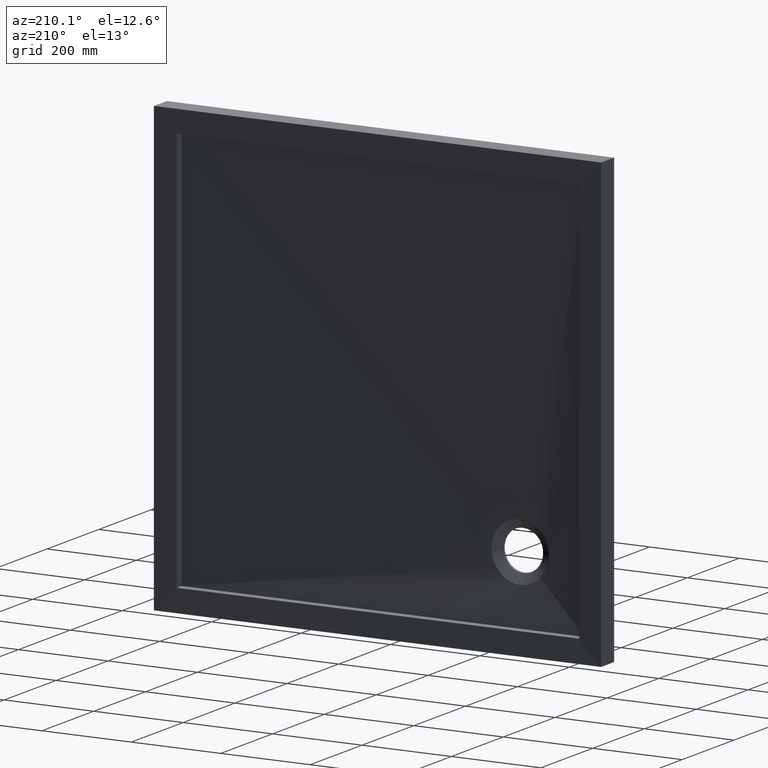
[diagram: clean part render]
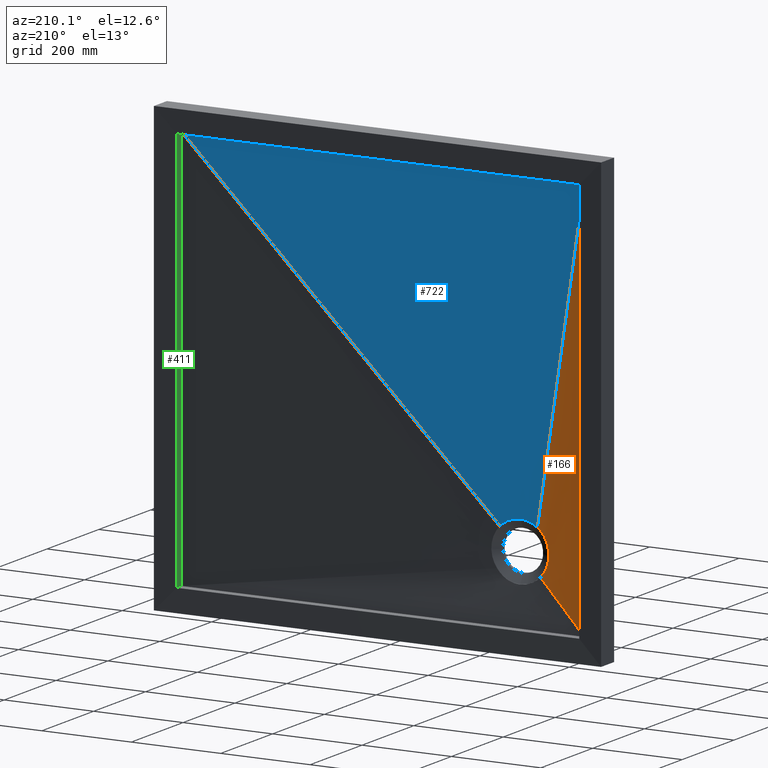
[diagram: same view with three faces highlighted in distinct colors, each labeled with its STEP entity id]
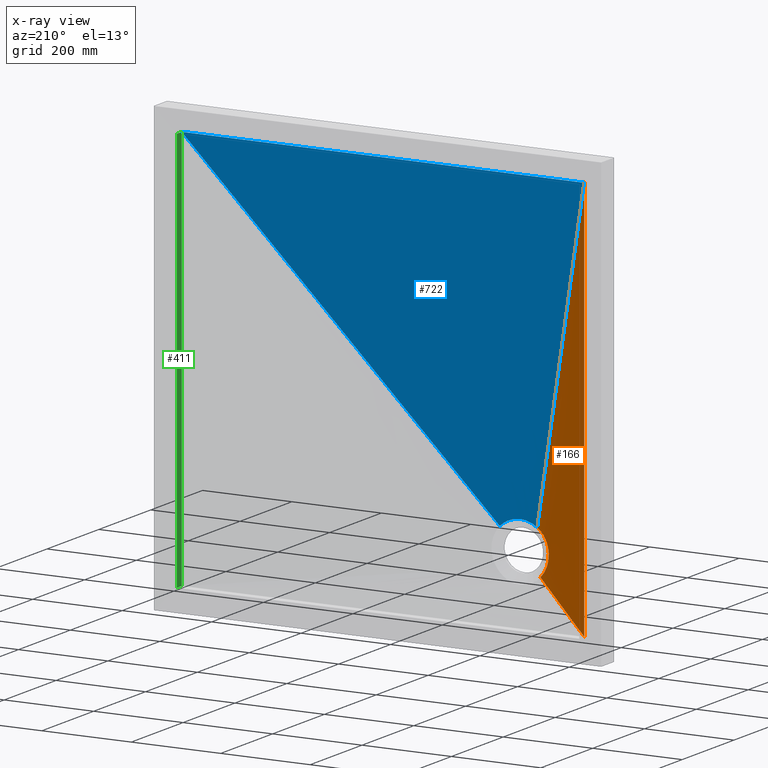
[diagram: x-ray of the same camera — body ghosted, the three highlighted faces saturated]
A machine part, auxiliary view with three faces highlighted in distinct colors.
The next image is the same camera in x-ray (body ghosted, the three faces saturated) — at least one of them is partly hidden behind the body in this view.
Their STEP definitions:

[orange] entity #166 — the highlighted face is a freeform B-spline surface patch.
#7 = FACE_OUTER_BOUND ( 'NONE', #944, .T. ) ;
#14 = CARTESIAN_POINT ( 'NONE',  ( -352.8551684008061800, 17.54700538379253100, -262.1670623223303700 ) ) ;
#31 = CARTESIAN_POINT ( 'NONE',  ( -450.0000000000000000, 29.00000000000000000, 450.0000000000000000 ) ) ;
#35 = CARTESIAN_POINT ( 'NONE',  ( -450.0000000000000000, 28.99999999999991500, 450.0000000000000000 ) ) ;
#38 = CARTESIAN_POINT ( 'NONE',  ( -364.2921233611156100, 18.82198326858354100, -290.2444114671553700 ) ) ;
#47 = CARTESIAN_POINT ( 'NONE',  ( -343.8418529201518900, 16.99999999999999600, -326.2526570011329500 ) ) ;
#51 = CARTESIAN_POINT ( 'NONE',  ( -338.5603925686426700, 17.26308587154314400, -248.2853138542000100 ) ) ;
#53 = CARTESIAN_POINT ( 'NONE',  ( -351.8251664246633400, 17.50373518111064900, -260.8568435387116400 ) ) ;
#56 = CARTESIAN_POINT ( 'NONE',  ( -348.1457094635766800, 17.00000000000000400, -317.1577413017159900 ) ) ;
#67 = CARTESIAN_POINT ( 'NONE',  ( -450.0000000000000600, 29.00000000000000400, -262.5000000000001700 ) ) ;
#69 = CARTESIAN_POINT ( 'NONE',  ( -354.3467400041220100, 18.51606842640906700, -335.7070884190870900 ) ) ;
#79 = EDGE_CURVE ( 'NONE', #208, #435, #504, .T. ) ;
#94 = CARTESIAN_POINT ( 'NONE',  ( -361.5845110594728500, 18.31609670325806500, -279.1194683879301100 ) ) ;
#101 = CARTESIAN_POINT ( 'NONE',  ( -348.6703369655473400, 18.17281108729402900, -343.2535445887040200 ) ) ;
#102 = CARTESIAN_POINT ( 'NONE',  ( -393.0312229202571100, 23.00000000000000000, -393.0312229202569900 ) ) ;
#112 = B_SPLINE_CURVE_WITH_KNOTS ( 'NONE', 3,
 ( #186, #53, #938, #713, #727, #649, #679, #51 ),
 .UNSPECIFIED., .F., .F.,
 ( 4, 2, 2, 4 ),
 ( 0.0000000000000000000, 0.004993680485599009300, 0.009987360971198018500, 0.01997472194239603700 ),
 .UNSPECIFIED. ) ;
#117 = CARTESIAN_POINT ( 'NONE',  ( -364.9013166892488600, 18.98730738815679700, -295.9415274406735500 ) ) ;
#120 = VERTEX_POINT ( 'NONE', #740 ) ;
#126 = CARTESIAN_POINT ( 'NONE',  ( -363.2990674265385600, 19.09109580896117800, -314.8928397711155200 ) ) ;
#139 = ORIENTED_EDGE ( 'NONE', *, *, #728, .F. ) ;
#151 = VERTEX_POINT ( 'NONE', #502 ) ;
#152 = CARTESIAN_POINT ( 'NONE',  ( -360.5555862890719800, 18.92876172514269200, -323.9297737032595700 ) ) ;
#155 = CARTESIAN_POINT ( 'NONE',  ( -336.0624458405141000, 17.00000000000000000, -263.9375541594859000 ) ) ;
#166 = ADVANCED_FACE ( 'NONE', ( #7 ), #324, .F. ) ;
#176 = CARTESIAN_POINT ( 'NONE',  ( -450.0000000000000000, 28.99999999999991500, 450.0000000000000000 ) ) ;
#178 = CARTESIAN_POINT ( 'NONE',  ( -345.4639620923478600, 17.00000000000000700, -276.6456518568106200 ) ) ;
#184 = CARTESIAN_POINT ( 'NONE',  ( -358.5415815889070900, 18.79393348236906300, -328.2629889402772400 ) ) ;
#186 = CARTESIAN_POINT ( 'NONE',  ( -352.8551684008061800, 17.54700538379253100, -262.1670623223303700 ) ) ;
#205 = B_SPLINE_CURVE_WITH_KNOTS ( 'NONE', 3,
 ( #176, #254, #275, #824 ),
 .UNSPECIFIED., .F., .F.,
 ( 4, 4 ),
 ( 0.0000000000000000000, 1.000000000000000000 ),
 .UNSPECIFIED. ) ;
#208 = VERTEX_POINT ( 'NONE', #958 ) ;
#221 = CARTESIAN_POINT ( 'NONE',  ( -353.9702514442683400, 17.59203971971301400, -263.7249086240165100 ) ) ;
#224 = LINE ( 'NONE', #656, #436 ) ;
#230 = CARTESIAN_POINT ( 'NONE',  ( -450.0000000000001100, 29.00000000000000400, -412.5000000000001100 ) ) ;
#247 = CARTESIAN_POINT ( 'NONE',  ( -360.2520787217121100, 18.12160243016774100, -275.5391003323758200 ) ) ;
#253 = CARTESIAN_POINT ( 'NONE',  ( -348.1457094635766800, 17.00000000000000700, -282.8422586982841300 ) ) ;
#254 = CARTESIAN_POINT ( 'NONE',  ( -450.0000000000000600, 28.99999999999947100, 150.0000000000000300 ) ) ;
#271 = ORIENTED_EDGE ( 'NONE', *, *, #663, .T. ) ;
#274 = CARTESIAN_POINT ( 'NONE',  ( -351.0000000000002800, 17.00000000000000000, -296.4791847198286500 ) ) ;
#275 = CARTESIAN_POINT ( 'NONE',  ( -450.0000000000000600, 28.99999999999947100, -150.0000000000000300 ) ) ;
#278 = DIRECTION ( 'NONE',  ( -0.7051540081587475100, 0.07426741920456142500, -0.7051540081587475100 ) ) ;
#286 = CARTESIAN_POINT ( 'NONE',  ( -355.3618584675568300, 18.58212411533954600, -334.1124750363029500 ) ) ;
#318 = CARTESIAN_POINT ( 'NONE',  ( -364.5507734855690400, 18.88424425501423100, -292.1355388024512100 ) ) ;
#324 = B_SPLINE_SURFACE_WITH_KNOTS ( 'NONE', 3, 1, ( 
 ( #31, #155 ),
 ( #877, #800 ),
 ( #756, #363 ),
 ( #697, #814 ),
 ( #910, #178 ),
 ( #443, #253 ),
 ( #420, #470 ),
 ( #790, #614 ),
 ( #406, #274 ),
 ( #810, #977 ),
 ( #737, #767 ),
 ( #964, #582 ),
 ( #380, #56 ),
 ( #67, #773 ),
 ( #925, #47 ),
 ( #786, #346 ),
 ( #230, #785 ),
 ( #359, #495 ) ),
 .UNSPECIFIED., .F., .F., .F.,
 ( 4, 2, 2, 2, 2, 2, 2, 2, 4 ),
 ( 2, 2 ),
 ( 0.0000000000000000000, 0.1250000000000000000, 0.2500000000000000000, 0.3750000000000000000, 0.5000000000000000000, 0.6250000000000000000, 0.7500000000000000000, 0.8750000000000000000, 1.000000000000000000 ),
 ( 0.0000000000000000000, 1.000000000000000000 ),
 .UNSPECIFIED. ) ;
#334 = EDGE_CURVE ( 'NONE', #556, #151, #205, .T. ) ;
#346 = CARTESIAN_POINT ( 'NONE',  ( -340.2030057114421900, 16.99999999999999600, -331.5440707401105600 ) ) ;
#359 = CARTESIAN_POINT ( 'NONE',  ( -450.0000000000001100, 29.00000000000000000, -450.0000000000000000 ) ) ;
#363 = CARTESIAN_POINT ( 'NONE',  ( -340.2030057114422400, 17.00000000000000400, -268.4559292598892700 ) ) ;
#364 = CARTESIAN_POINT ( 'NONE',  ( -363.7059645829671100, 19.10922747646185400, -313.0445142335825000 ) ) ;
#377 = LINE ( 'NONE', #102, #963 ) ;
#380 = CARTESIAN_POINT ( 'NONE',  ( -450.0000000000001100, 29.00000000000000400, -187.5000000000001700 ) ) ;
#406 = CARTESIAN_POINT ( 'NONE',  ( -450.0000000000000600, 29.00000000000000400, 37.49999999999979400 ) ) ;
#414 = CARTESIAN_POINT ( 'NONE',  ( -362.1703942737784100, 18.41335873184959100, -280.9347016672782000 ) ) ;
#420 = CARTESIAN_POINT ( 'NONE',  ( -450.0000000000000600, 29.00000000000000400, 149.9999999999998300 ) ) ;
#431 = CARTESIAN_POINT ( 'NONE',  ( -357.2395091292833100, 18.70663715667435100, -330.8147208340935200 ) ) ;
#435 = VERTEX_POINT ( 'NONE', #14 ) ;
#436 = VECTOR ( 'NONE', #967, 999.9999999999998900 ) ;
#443 = CARTESIAN_POINT ( 'NONE',  ( -450.0000000000000600, 29.00000000000000400, 187.4999999999998300 ) ) ;
#460 = ORIENTED_EDGE ( 'NONE', *, *, #79, .F. ) ;
#463 = CARTESIAN_POINT ( 'NONE',  ( -345.9619407771256200, 18.04262321686363900, -345.9619407771255100 ) ) ;
#470 = CARTESIAN_POINT ( 'NONE',  ( -349.2040332106620300, 17.00000000000000000, -286.1400715441737400 ) ) ;
#479 = CARTESIAN_POINT ( 'NONE',  ( -364.5843865273288300, 19.12528167321582400, -307.4006626994245700 ) ) ;
#484 = CARTESIAN_POINT ( 'NONE',  ( -361.8414236869116400, 19.01285610084535100, -320.3694077097542800 ) ) ;
#492 = CARTESIAN_POINT ( 'NONE',  ( -364.6866029590012800, 19.12285866245416700, -306.4465555110787100 ) ) ;
#495 = CARTESIAN_POINT ( 'NONE',  ( -336.0624458405141000, 17.00000000000000000, -336.0624458405139900 ) ) ;
#502 = CARTESIAN_POINT ( 'NONE',  ( -450.0000000000001100, 29.00000000000000000, -450.0000000000000000 ) ) ;
#504 = B_SPLINE_CURVE_WITH_KNOTS ( 'NONE', 3,
 ( #463, #101, #904, #69, #286, #610, #431, #537, #184, #152, #484, #126, #364, #890, #929, #479, #492, #948, #726, #796, #117, #318, #38, #555, #985, #414, #94, #247, #819, #712, #749, #900, #221, #804 ),
 .UNSPECIFIED., .F., .F.,
 ( 4, 2, 2, 2, 2, 2, 2, 2, 2, 2, 2, 2, 2, 2, 2, 2, 4 ),
 ( 0.0000000000000000000, 0.01133462450282639000, 0.01700193675423947200, 0.01983559287994600800, 0.02266924900565254700, 0.03400387350847899200, 0.03967118575989226500, 0.04250484188559892200, 0.04533849801130557900, 0.05100581026271906000, 0.05667312251413253500, 0.06234043476554601600, 0.06800774701695948300, 0.07367505926837296400, 0.07934237151978643100, 0.08500968377119991200, 0.09067699602261339300 ),
 .UNSPECIFIED. ) ;
#537 = CARTESIAN_POINT ( 'NONE',  ( -358.1183958962571400, 18.76550048180119000, -329.1231949464739200 ) ) ;
#555 = CARTESIAN_POINT ( 'NONE',  ( -363.6083004728861300, 18.67681216011788000, -286.4858316995046200 ) ) ;
#556 = VERTEX_POINT ( 'NONE', #35 ) ;
#582 = CARTESIAN_POINT ( 'NONE',  ( -349.2040332106619200, 17.00000000000000400, -313.8599284558259200 ) ) ;
#610 = CARTESIAN_POINT ( 'NONE',  ( -356.7828282375139100, 18.67614018704998100, -331.6482147817226900 ) ) ;
#614 = CARTESIAN_POINT ( 'NONE',  ( -350.6316215631954400, 17.00000000000000400, -292.9591620613796300 ) ) ;
#649 = CARTESIAN_POINT ( 'NONE',  ( -343.8085154320919500, 17.31847910624139100, -252.4015163884752400 ) ) ;
#656 = CARTESIAN_POINT ( 'NONE',  ( -393.0312229202570500, 23.00000000000000000, 93.03122292025706500 ) ) ;
#663 = EDGE_CURVE ( 'NONE', #208, #151, #377, .T. ) ;
#679 = CARTESIAN_POINT ( 'NONE',  ( -341.2593816668664300, 17.28793742901142100, -250.2440877312139900 ) ) ;
#690 = ORIENTED_EDGE ( 'NONE', *, *, #334, .F. ) ;
#696 = EDGE_CURVE ( 'NONE', #556, #120, #224, .T. ) ;
#697 = CARTESIAN_POINT ( 'NONE',  ( -450.0000000000000600, 29.00000000000000000, 299.9999999999998300 ) ) ;
#712 = CARTESIAN_POINT ( 'NONE',  ( -357.8597999098281500, 17.85183297521119900, -270.3199830047479400 ) ) ;
#713 = CARTESIAN_POINT ( 'NONE',  ( -348.5391564187669400, 17.40853637329797700, -257.0978259820711300 ) ) ;
#726 = CARTESIAN_POINT ( 'NONE',  ( -365.0063781713903900, 19.08850047980048400, -301.6794621602513800 ) ) ;
#727 = CARTESIAN_POINT ( 'NONE',  ( -347.3871845973854400, 17.38355639157465800, -255.8920982370656000 ) ) ;
#728 = EDGE_CURVE ( 'NONE', #435, #120, #112, .T. ) ;
#735 = ORIENTED_EDGE ( 'NONE', *, *, #696, .T. ) ;
#737 = CARTESIAN_POINT ( 'NONE',  ( -450.0000000000000600, 29.00000000000000400, -75.00000000000019900 ) ) ;
#740 = CARTESIAN_POINT ( 'NONE',  ( -338.5603925686426700, 17.26308587154314400, -248.2853138542000100 ) ) ;
#749 = CARTESIAN_POINT ( 'NONE',  ( -356.9604289158505100, 17.77515069837810600, -268.6284370782415700 ) ) ;
#756 = CARTESIAN_POINT ( 'NONE',  ( -450.0000000000000600, 29.00000000000000000, 374.9999999999998900 ) ) ;
#767 = CARTESIAN_POINT ( 'NONE',  ( -350.6316215631954900, 17.00000000000000000, -307.0408379386201400 ) ) ;
#773 = CARTESIAN_POINT ( 'NONE',  ( -345.4639620923478000, 17.00000000000000400, -323.3543481431895000 ) ) ;
#785 = CARTESIAN_POINT ( 'NONE',  ( -338.1874458405141000, 17.00000000000000400, -333.9374458405139900 ) ) ;
#786 = CARTESIAN_POINT ( 'NONE',  ( -450.0000000000001100, 29.00000000000000400, -375.0000000000001100 ) ) ;
#790 = CARTESIAN_POINT ( 'NONE',  ( -450.0000000000000600, 29.00000000000000400, 74.99999999999980100 ) ) ;
#796 = CARTESIAN_POINT ( 'NONE',  ( -364.9928011026598300, 19.02815523540662900, -297.8585983703063700 ) ) ;
#800 = CARTESIAN_POINT ( 'NONE',  ( -338.1874458405141600, 17.00000000000000000, -266.0625541594859000 ) ) ;
#804 = CARTESIAN_POINT ( 'NONE',  ( -352.8551684008061800, 17.54700538379253100, -262.1670623223303700 ) ) ;
#810 = CARTESIAN_POINT ( 'NONE',  ( -450.0000000000000600, 29.00000000000000400, -37.50000000000021300 ) ) ;
#814 = CARTESIAN_POINT ( 'NONE',  ( -343.8418529201518900, 16.99999999999999300, -273.7473429988668800 ) ) ;
#819 = CARTESIAN_POINT ( 'NONE',  ( -359.5052134994810400, 18.02503626519804000, -273.7742603378859500 ) ) ;
#824 = CARTESIAN_POINT ( 'NONE',  ( -450.0000000000001100, 29.00000000000000000, -450.0000000000000000 ) ) ;
#877 = CARTESIAN_POINT ( 'NONE',  ( -450.0000000000000600, 29.00000000000000000, 412.5000000000000000 ) ) ;
#890 = CARTESIAN_POINT ( 'NONE',  ( -364.1958076854799100, 19.12299368659877900, -310.2372161434631200 ) ) ;
#900 = CARTESIAN_POINT ( 'NONE',  ( -355.0152291498682200, 17.64541825568552700, -265.3302728014913900 ) ) ;
#904 = CARTESIAN_POINT ( 'NONE',  ( -351.1005741778367900, 18.31353808573291500, -340.3483403434632900 ) ) ;
#910 = CARTESIAN_POINT ( 'NONE',  ( -450.0000000000001100, 29.00000000000000400, 262.4999999999998300 ) ) ;
#925 = CARTESIAN_POINT ( 'NONE',  ( -450.0000000000000600, 29.00000000000000400, -300.0000000000001700 ) ) ;
#929 = CARTESIAN_POINT ( 'NONE',  ( -364.3389762461997600, 19.12534245992991800, -309.2956402196406900 ) ) ;
#938 = CARTESIAN_POINT ( 'NONE',  ( -350.7574903437760000, 17.46860849645792500, -259.5795773333211400 ) ) ;
#944 = EDGE_LOOP ( 'NONE', ( #460, #271, #690, #735, #139 ) ) ;
#948 = CARTESIAN_POINT ( 'NONE',  ( -364.9290956595341400, 19.10816612324314400, -303.5876535739411100 ) ) ;
#958 = CARTESIAN_POINT ( 'NONE',  ( -345.9619407771256200, 18.04262321686363900, -345.9619407771255100 ) ) ;
#963 = VECTOR ( 'NONE', #278, 1000.000000000000000 ) ;
#964 = CARTESIAN_POINT ( 'NONE',  ( -450.0000000000000600, 29.00000000000000400, -150.0000000000002000 ) ) ;
#967 = DIRECTION ( 'NONE',  ( 0.1575743643600920600, -0.01659586592208480600, -0.9873676604643324400 ) ) ;
#977 = CARTESIAN_POINT ( 'NONE',  ( -351.0000000000002300, 17.00000000000000400, -303.5208152801713500 ) ) ;
#985 = CARTESIAN_POINT ( 'NONE',  ( -363.1820438321539700, 18.59357988212811500, -284.6158243033780200 ) ) ;

[blue] entity #722 — the highlighted face is a freeform B-spline surface patch.
#8 = CARTESIAN_POINT ( 'NONE',  ( -266.0625541594860100, 17.00000000000000400, -261.8125541594859600 ) ) ;
#28 = CARTESIAN_POINT ( 'NONE',  ( -149.9999999999999700, 28.99999999999991500, 450.0000000000000600 ) ) ;
#35 = CARTESIAN_POINT ( 'NONE',  ( -450.0000000000000000, 28.99999999999991500, 450.0000000000000000 ) ) ;
#43 = CARTESIAN_POINT ( 'NONE',  ( -256.0309972352126200, 17.16113947937070300, -253.0274943978451700 ) ) ;
#46 = CARTESIAN_POINT ( 'NONE',  ( -311.9648611113410700, 17.25086131009051000, -236.6094369888709500 ) ) ;
#50 = CARTESIAN_POINT ( 'NONE',  ( -283.3549694857541100, 17.20867441312686500, -237.7381808175571200 ) ) ;
#55 = CARTESIAN_POINT ( 'NONE',  ( -279.3351583616008600, 17.20187163617892900, -238.9940211910031300 ) ) ;
#80 = CARTESIAN_POINT ( 'NONE',  ( -263.9375541594860100, 17.00000000000000000, -263.9375541594859000 ) ) ;
#85 = B_SPLINE_CURVE_WITH_KNOTS ( 'NONE', 3,
 ( #493, #986, #28, #154 ),
 .UNSPECIFIED., .F., .F.,
 ( 4, 4 ),
 ( 0.0000000000000000000, 1.000000000000000000 ),
 .UNSPECIFIED. ) ;
#86 = CARTESIAN_POINT ( 'NONE',  ( 450.0000000000000000, 29.00000000000000000, 450.0000000000001100 ) ) ;
#95 = CARTESIAN_POINT ( 'NONE',  ( -291.5689109689746500, 17.22219290705118100, -236.0818602959699300 ) ) ;
#96 = EDGE_CURVE ( 'NONE', #978, #911, #842, .T. ) ;
#97 = ORIENTED_EDGE ( 'NONE', *, *, #807, .F. ) ;
#114 = CARTESIAN_POINT ( 'NONE',  ( -286.1400715441738500, 17.00000000000000000, -250.7959667893379100 ) ) ;
#116 = CARTESIAN_POINT ( 'NONE',  ( -319.4930070071359300, 17.25823552145292400, -238.5101334715407400 ) ) ;
#120 = VERTEX_POINT ( 'NONE', #740 ) ;
#124 = CARTESIAN_POINT ( 'NONE',  ( -338.5603925686426700, 17.26308587154314400, -248.2853138542000100 ) ) ;
#131 = B_SPLINE_CURVE_WITH_KNOTS ( 'NONE', 3,
 ( #670, #837, #774, #193, #858, #95, #738, #664, #50, #650, #55, #621, #539, #917, #850, #927, #947, #677, #258, #43, #884, #826 ),
 .UNSPECIFIED., .F., .F.,
 ( 4, 2, 2, 2, 2, 2, 2, 2, 2, 2, 4 ),
 ( 0.04113995195753773100, 0.04428207836203593200, 0.04742420476653412500, 0.05370845757553051300, 0.05999271038452690100, 0.06313483678902501200, 0.06627696319352313600, 0.07884546881151535700, 0.08512972162051150900, 0.08827184802500952200, 0.09141397442950752200 ),
 .UNSPECIFIED. ) ;
#154 = CARTESIAN_POINT ( 'NONE',  ( -450.0000000000000000, 28.99999999999991500, 450.0000000000000000 ) ) ;
#172 = CARTESIAN_POINT ( 'NONE',  ( -273.7473429988670500, 16.99999999999999600, -256.1581470798480500 ) ) ;
#175 = ORIENTED_EDGE ( 'NONE', *, *, #696, .F. ) ;
#179 = CARTESIAN_POINT ( 'NONE',  ( 74.99999999999951700, 29.00000000000000400, 450.0000000000000600 ) ) ;
#187 = VERTEX_POINT ( 'NONE', #508 ) ;
#193 = CARTESIAN_POINT ( 'NONE',  ( -295.7631510587033900, 17.22875659576783000, -235.6819173638753300 ) ) ;
#202 = CARTESIAN_POINT ( 'NONE',  ( -326.2526570011330000, 17.00000000000000000, -256.1581470798482200 ) ) ;
#206 = CARTESIAN_POINT ( 'NONE',  ( -323.3543481431895500, 17.00000000000000000, -254.5360379076521200 ) ) ;
#224 = LINE ( 'NONE', #656, #436 ) ;
#229 = CARTESIAN_POINT ( 'NONE',  ( -323.6104398865866200, 17.26147282362796900, -239.8706885921183100 ) ) ;
#237 = CARTESIAN_POINT ( 'NONE',  ( -307.0408379386203700, 17.00000000000000000, -249.3683784368045300 ) ) ;
#252 = CARTESIAN_POINT ( 'NONE',  ( 412.4999999999999400, 29.00000000000000000, 450.0000000000000600 ) ) ;
#255 = ORIENTED_EDGE ( 'NONE', *, *, #96, .T. ) ;
#258 = CARTESIAN_POINT ( 'NONE',  ( -257.6014667205688500, 17.16395936039909000, -251.5987365790470800 ) ) ;
#265 = CARTESIAN_POINT ( 'NONE',  ( -313.8599284558261500, 16.99999999999999600, -250.7959667893378500 ) ) ;
#280 = CARTESIAN_POINT ( 'NONE',  ( 149.9999999999995200, 29.00000000000000400, 450.0000000000000600 ) ) ;
#288 = CARTESIAN_POINT ( 'NONE',  ( -313.6489098088280800, 17.25272281939707100, -236.9470523910921100 ) ) ;
#309 = CARTESIAN_POINT ( 'NONE',  ( -317.1577413017159300, 17.00000000000000000, -251.8542905364232100 ) ) ;
#340 = CARTESIAN_POINT ( 'NONE',  ( -300.0000000000000600, 17.23511975935370800, -235.5402017476782000 ) ) ;
#401 = CARTESIAN_POINT ( 'NONE',  ( -187.5000000000001700, 28.99999999999999600, 450.0000000000000000 ) ) ;
#402 = B_SPLINE_CURVE_WITH_KNOTS ( 'NONE', 3,
 ( #124, #760, #434, #789, #229, #116, #494, #485, #926, #288, #46, #742, #512, #340 ),
 .UNSPECIFIED., .F., .F.,
 ( 4, 2, 2, 2, 2, 2, 4 ),
 ( 0.0000000000000000000, 0.01028498798938443400, 0.02056997597876886900, 0.02314122297611498300, 0.02571246997346109500, 0.03085496396815331000, 0.04113995195753773100 ),
 .UNSPECIFIED. ) ;
#433 = VECTOR ( 'NONE', #667, 1000.000000000000000 ) ;
#434 = CARTESIAN_POINT ( 'NONE',  ( -332.8572535547197600, 17.26459800906154000, -244.3780121179430000 ) ) ;
#436 = VECTOR ( 'NONE', #967, 999.9999999999998900 ) ;
#439 = EDGE_CURVE ( 'NONE', #187, #911, #131, .T. ) ;
#452 = CARTESIAN_POINT ( 'NONE',  ( -296.4791847198287100, 17.00000000000000000, -248.9999999999998000 ) ) ;
#472 = CARTESIAN_POINT ( 'NONE',  ( 450.0000000000002300, 29.00000000000000000, 450.0000000000001100 ) ) ;
#476 = FACE_OUTER_BOUND ( 'NONE', #743, .T. ) ;
#485 = CARTESIAN_POINT ( 'NONE',  ( -316.9958233185626600, 17.25603542168802200, -237.7775833483804000 ) ) ;
#493 = CARTESIAN_POINT ( 'NONE',  ( 450.0000000000002300, 29.00000000000000000, 450.0000000000001100 ) ) ;
#494 = CARTESIAN_POINT ( 'NONE',  ( -318.6609623412248900, 17.25753170825674200, -238.2538265397795100 ) ) ;
#508 = CARTESIAN_POINT ( 'NONE',  ( -300.0000000000000600, 17.23511975935370800, -235.5402017476782000 ) ) ;
#512 = CARTESIAN_POINT ( 'NONE',  ( -303.4613990964522800, 17.24017999476849300, -235.5314371628416800 ) ) ;
#530 = CARTESIAN_POINT ( 'NONE',  ( -150.0000000000002000, 28.99999999999999600, 450.0000000000000600 ) ) ;
#534 = CARTESIAN_POINT ( 'NONE',  ( 93.03122292025712200, 23.00000000000000000, 93.03122292025712200 ) ) ;
#539 = CARTESIAN_POINT ( 'NONE',  ( -276.3511707272214700, 17.19676822404616700, -240.0970892184795400 ) ) ;
#545 = CARTESIAN_POINT ( 'NONE',  ( -254.5140105692795800, 17.15839273676478200, -254.5140105692794600 ) ) ;
#556 = VERTEX_POINT ( 'NONE', #35 ) ;
#557 = CARTESIAN_POINT ( 'NONE',  ( -37.50000000000034800, 29.00000000000000400, 450.0000000000000600 ) ) ;
#562 = CARTESIAN_POINT ( 'NONE',  ( -412.5000000000000600, 28.99999999999999600, 449.9999999999999400 ) ) ;
#593 = CARTESIAN_POINT ( 'NONE',  ( -333.9374458405141600, 17.00000000000000000, -261.8125541594860100 ) ) ;
#594 = CARTESIAN_POINT ( 'NONE',  ( -336.0624458405141000, 17.00000000000000000, -263.9375541594859000 ) ) ;
#621 = CARTESIAN_POINT ( 'NONE',  ( -277.3435255802096400, 17.19847142159727200, -239.7116034519668800 ) ) ;
#623 = CARTESIAN_POINT ( 'NONE',  ( -262.5000000000001700, 28.99999999999999600, 449.9999999999999400 ) ) ;
#650 = CARTESIAN_POINT ( 'NONE',  ( -280.3362354380332100, 17.20357180404728600, -238.6610435348146100 ) ) ;
#656 = CARTESIAN_POINT ( 'NONE',  ( -393.0312229202570500, 23.00000000000000000, 93.03122292025706500 ) ) ;
#664 = CARTESIAN_POINT ( 'NONE',  ( -285.3880889855440200, 17.21209000652072900, -237.2241683990566800 ) ) ;
#667 = DIRECTION ( 'NONE',  ( -0.7070568443483394900, -0.01188434770344730400, -0.7070568443483392600 ) ) ;
#670 = CARTESIAN_POINT ( 'NONE',  ( -300.0000000000000600, 17.23511975935370800, -235.5402017476782000 ) ) ;
#677 = CARTESIAN_POINT ( 'NONE',  ( -258.4059502331037900, 17.16539603516305600, -250.9024589136337800 ) ) ;
#678 = CARTESIAN_POINT ( 'NONE',  ( 374.9999999999998300, 29.00000000000000000, 450.0000000000000600 ) ) ;
#687 = CARTESIAN_POINT ( 'NONE',  ( -375.0000000000001100, 28.99999999999999600, 449.9999999999999400 ) ) ;
#696 = EDGE_CURVE ( 'NONE', #556, #120, #224, .T. ) ;
#722 = ADVANCED_FACE ( 'NONE', ( #476 ), #924, .F. ) ;
#723 = EDGE_CURVE ( 'NONE', #978, #556, #85, .T. ) ;
#736 = CARTESIAN_POINT ( 'NONE',  ( -75.00000000000025600, 29.00000000000000000, 450.0000000000000600 ) ) ;
#738 = CARTESIAN_POINT ( 'NONE',  ( -289.4950590420382400, 17.21885150639338500, -236.3960047945335200 ) ) ;
#740 = CARTESIAN_POINT ( 'NONE',  ( -338.5603925686426700, 17.26308587154314400, -248.2853138542000100 ) ) ;
#742 = CARTESIAN_POINT ( 'NONE',  ( -306.8849117032773400, 17.24480367108943900, -235.8004177364212200 ) ) ;
#743 = EDGE_LOOP ( 'NONE', ( #97, #175, #957, #255, #909 ) ) ;
#760 = CARTESIAN_POINT ( 'NONE',  ( -335.7737197350496100, 17.26434937202085300, -246.2047371495568500 ) ) ;
#762 = CARTESIAN_POINT ( 'NONE',  ( -450.0000000000000000, 29.00000000000000000, 450.0000000000000000 ) ) ;
#774 = CARTESIAN_POINT ( 'NONE',  ( -297.8785937166142600, 17.23198131659841400, -235.5718520258692800 ) ) ;
#789 = CARTESIAN_POINT ( 'NONE',  ( -326.7756130207695300, 17.26315089076872100, -241.2109890361850800 ) ) ;
#807 = EDGE_CURVE ( 'NONE', #120, #187, #402, .T. ) ;
#820 = CARTESIAN_POINT ( 'NONE',  ( -303.5208152801713500, 16.99999999999999600, -248.9999999999997400 ) ) ;
#823 = CARTESIAN_POINT ( 'NONE',  ( 299.9999999999997200, 29.00000000000000400, 450.0000000000000600 ) ) ;
#825 = CARTESIAN_POINT ( 'NONE',  ( -331.5440707401106700, 16.99999999999999600, -259.7969942885577000 ) ) ;
#826 = CARTESIAN_POINT ( 'NONE',  ( -254.5140105692795800, 17.15839273676478200, -254.5140105692794600 ) ) ;
#828 = CARTESIAN_POINT ( 'NONE',  ( -282.8422586982842400, 17.00000000000000700, -251.8542905364233800 ) ) ;
#837 = CARTESIAN_POINT ( 'NONE',  ( -298.9425215169239900, 17.23357382664810800, -235.5428793816695600 ) ) ;
#842 = LINE ( 'NONE', #534, #433 ) ;
#848 = CARTESIAN_POINT ( 'NONE',  ( -300.0000000000001700, 28.99999999999999600, 449.9999999999999400 ) ) ;
#850 = CARTESIAN_POINT ( 'NONE',  ( -267.7759704175886100, 17.18192934940879000, -244.1214791939737000 ) ) ;
#858 = CARTESIAN_POINT ( 'NONE',  ( -294.7107075512296900, 17.22712379247843700, -235.7628474257595900 ) ) ;
#880 = CARTESIAN_POINT ( 'NONE',  ( -268.4559292598894400, 17.00000000000000000, -259.7969942885577000 ) ) ;
#884 = CARTESIAN_POINT ( 'NONE',  ( -255.2635762968637600, 17.15975369619033900, -253.7611111855425700 ) ) ;
#909 = ORIENTED_EDGE ( 'NONE', *, *, #439, .F. ) ;
#911 = VERTEX_POINT ( 'NONE', #545 ) ;
#917 = CARTESIAN_POINT ( 'NONE',  ( -271.4684570847221600, 17.18835305123358700, -242.1338321094310100 ) ) ;
#919 = CARTESIAN_POINT ( 'NONE',  ( 187.4999999999995500, 29.00000000000000400, 450.0000000000000600 ) ) ;
#924 = B_SPLINE_SURFACE_WITH_KNOTS ( 'NONE', 3, 1, ( 
 ( #86, #80 ),
 ( #252, #8 ),
 ( #678, #880 ),
 ( #823, #172 ),
 ( #979, #952 ),
 ( #919, #828 ),
 ( #280, #114 ),
 ( #179, #951 ),
 ( #949, #452 ),
 ( #557, #820 ),
 ( #736, #237 ),
 ( #530, #265 ),
 ( #401, #309 ),
 ( #623, #206 ),
 ( #848, #202 ),
 ( #687, #825 ),
 ( #562, #593 ),
 ( #762, #594 ) ),
 .UNSPECIFIED., .F., .F., .F.,
 ( 4, 2, 2, 2, 2, 2, 2, 2, 4 ),
 ( 2, 2 ),
 ( 0.0000000000000000000, 0.1250000000000000600, 0.2500000000000001100, 0.3750000000000001700, 0.5000000000000000000, 0.6249999999999997800, 0.7499999999999998900, 0.8749999999999998900, 1.000000000000000000 ),
 ( 0.0000000000000000000, 1.000000000000000000 ),
 .UNSPECIFIED. ) ;
#926 = CARTESIAN_POINT ( 'NONE',  ( -316.1608620951112100, 17.25524124217441000, -237.5569955146387100 ) ) ;
#927 = CARTESIAN_POINT ( 'NONE',  ( -262.5494147767129200, 17.17273909815203200, -247.6263263822801300 ) ) ;
#947 = CARTESIAN_POINT ( 'NONE',  ( -260.8596243248141500, 17.16975831298998400, -248.8824513464478500 ) ) ;
#949 = CARTESIAN_POINT ( 'NONE',  ( 37.49999999999954500, 29.00000000000000400, 450.0000000000000600 ) ) ;
#951 = CARTESIAN_POINT ( 'NONE',  ( -292.9591620613797400, 17.00000000000000400, -249.3683784368045600 ) ) ;
#952 = CARTESIAN_POINT ( 'NONE',  ( -276.6456518568106700, 17.00000000000000700, -254.5360379076521200 ) ) ;
#957 = ORIENTED_EDGE ( 'NONE', *, *, #723, .F. ) ;
#967 = DIRECTION ( 'NONE',  ( 0.1575743643600920600, -0.01659586592208480600, -0.9873676604643324400 ) ) ;
#978 = VERTEX_POINT ( 'NONE', #472 ) ;
#979 = CARTESIAN_POINT ( 'NONE',  ( 262.4999999999996600, 29.00000000000000400, 450.0000000000000600 ) ) ;
#986 = CARTESIAN_POINT ( 'NONE',  ( 150.0000000000002000, 28.99999999999991500, 450.0000000000000600 ) ) ;

[green] entity #411 — the highlighted planar face has unit normal (1, 0, -0).
#10 = DIRECTION ( 'NONE',  ( -3.700743415417188600E-016, 0.0000000000000000000, -1.000000000000000000 ) ) ;
#73 = VERTEX_POINT ( 'NONE', #395 ) ;
#100 = CARTESIAN_POINT ( 'NONE',  ( 450.0000000000001100, 28.99999999999947100, 150.0000000000000900 ) ) ;
#158 = AXIS2_PLACEMENT_3D ( 'NONE', #955, #365, #10 ) ;
#219 = ORIENTED_EDGE ( 'NONE', *, *, #287, .F. ) ;
#287 = EDGE_CURVE ( 'NONE', #299, #424, #360, .T. ) ;
#299 = VERTEX_POINT ( 'NONE', #686 ) ;
#338 = EDGE_CURVE ( 'NONE', #978, #73, #464, .T. ) ;
#347 = EDGE_CURVE ( 'NONE', #73, #424, #511, .T. ) ;
#360 = LINE ( 'NONE', #868, #898 ) ;
#365 = DIRECTION ( 'NONE',  ( 1.000000000000000000, 0.0000000000000000000, -3.700743415417188600E-016 ) ) ;
#392 = ORIENTED_EDGE ( 'NONE', *, *, #347, .T. ) ;
#395 = CARTESIAN_POINT ( 'NONE',  ( 450.0000000000002300, 48.25745360236177800, 450.0000000000001700 ) ) ;
#411 = ADVANCED_FACE ( 'NONE', ( #913 ), #625, .F. ) ;
#424 = VERTEX_POINT ( 'NONE', #741 ) ;
#444 = EDGE_CURVE ( 'NONE', #299, #978, #879, .T. ) ;
#464 = LINE ( 'NONE', #604, #632 ) ;
#472 = CARTESIAN_POINT ( 'NONE',  ( 450.0000000000002300, 29.00000000000000000, 450.0000000000001100 ) ) ;
#475 = DIRECTION ( 'NONE',  ( -3.700743415417188600E-016, 0.0000000000000000000, -1.000000000000000000 ) ) ;
#480 = DIRECTION ( 'NONE',  ( -0.0000000000000000000, 1.000000000000000000, -0.0000000000000000000 ) ) ;
#488 = EDGE_LOOP ( 'NONE', ( #683, #392, #219, #608 ) ) ;
#511 = LINE ( 'NONE', #513, #748 ) ;
#513 = CARTESIAN_POINT ( 'NONE',  ( 449.9999999999998900, 48.25745360236189200, -449.9999999999999400 ) ) ;
#604 = CARTESIAN_POINT ( 'NONE',  ( 450.0000000000002300, -1272.792206135785800, 450.0000000000001100 ) ) ;
#605 = DIRECTION ( 'NONE',  ( -0.0000000000000000000, 1.000000000000000000, -0.0000000000000000000 ) ) ;
#608 = ORIENTED_EDGE ( 'NONE', *, *, #444, .T. ) ;
#625 = PLANE ( 'NONE',  #158 ) ;
#632 = VECTOR ( 'NONE', #605, 1000.000000000000000 ) ;
#683 = ORIENTED_EDGE ( 'NONE', *, *, #338, .T. ) ;
#686 = CARTESIAN_POINT ( 'NONE',  ( 449.9999999999998900, 29.00000000000000000, -450.0000000000000000 ) ) ;
#732 = CARTESIAN_POINT ( 'NONE',  ( 450.0000000000002300, 29.00000000000000000, 450.0000000000001100 ) ) ;
#734 = CARTESIAN_POINT ( 'NONE',  ( 449.9999999999998900, 29.00000000000000000, -450.0000000000000000 ) ) ;
#741 = CARTESIAN_POINT ( 'NONE',  ( 449.9999999999998900, 48.25745360236177800, -450.0000000000000000 ) ) ;
#748 = VECTOR ( 'NONE', #475, 1000.000000000000000 ) ;
#778 = CARTESIAN_POINT ( 'NONE',  ( 450.0000000000000000, 28.99999999999947100, -149.9999999999999700 ) ) ;
#868 = CARTESIAN_POINT ( 'NONE',  ( 449.9999999999998900, -1272.792206135785800, -450.0000000000000000 ) ) ;
#879 = B_SPLINE_CURVE_WITH_KNOTS ( 'NONE', 3,
 ( #734, #778, #100, #732 ),
 .UNSPECIFIED., .F., .F.,
 ( 4, 4 ),
 ( 0.0000000000000000000, 1.000000000000000000 ),
 .UNSPECIFIED. ) ;
#898 = VECTOR ( 'NONE', #480, 1000.000000000000000 ) ;
#913 = FACE_OUTER_BOUND ( 'NONE', #488, .T. ) ;
#955 = CARTESIAN_POINT ( 'NONE',  ( 450.0000000000002300, -1272.792206135785800, 450.0000000000001100 ) ) ;
#978 = VERTEX_POINT ( 'NONE', #472 ) ;